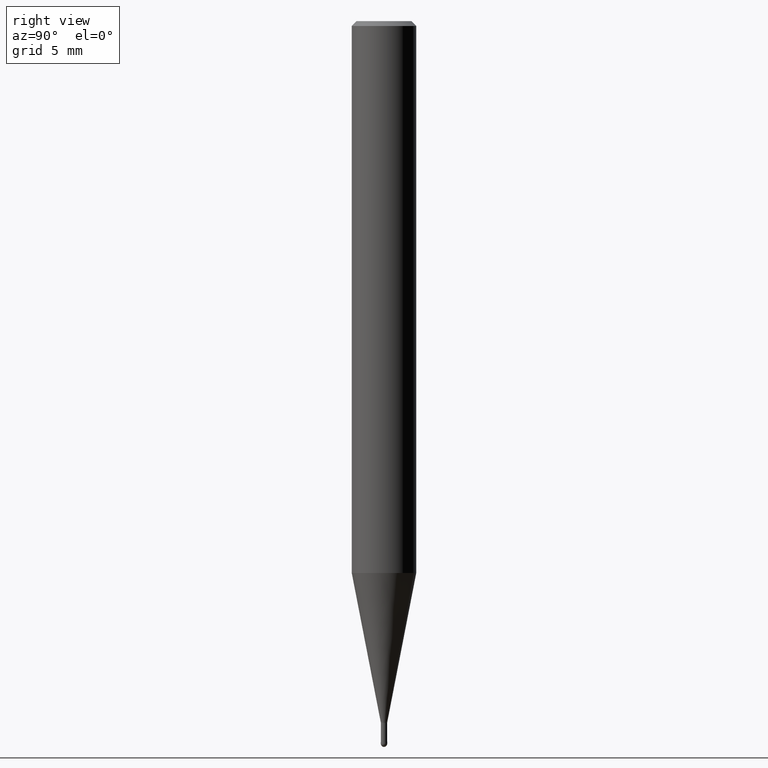
[diagram: clean part render]
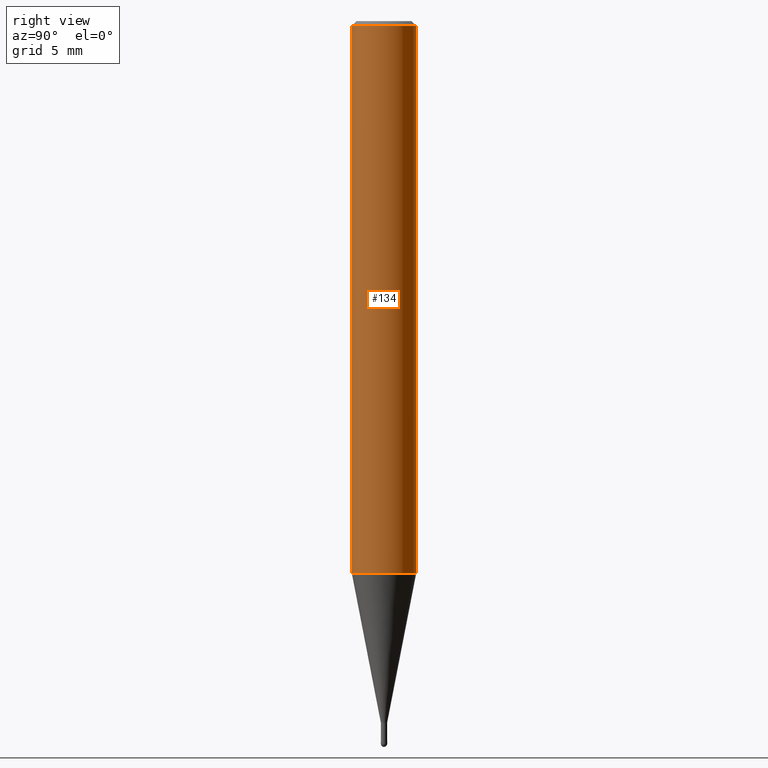
[diagram: same view with one face highlighted and labeled with its STEP entity id]
A machine part, right view. The second image highlights one B-rep face of the part: STEP entity #134.
In plain terms, the highlighted cylindrical surface (edge-blend (fillet) strip) has radius 2 mm, axis along (-0, -0, 1).
Its self-contained STEP definition (entity closure, byte-faithful):
#112=EDGE_CURVE('',#188,#140,#257,.T.);
#134=ADVANCED_FACE('',(#283),#284,.T.);
#140=VERTEX_POINT('',#291);
#144=VERTEX_POINT('',#295);
#158=EDGE_CURVE('',#166,#140,#311,.T.);
#164=EDGE_CURVE('',#144,#188,#317,.T.);
#166=VERTEX_POINT('',#319);
#180=EDGE_CURVE('',#166,#144,#335,.T.);
#188=VERTEX_POINT('',#343);
#257=LINE('',#413,#414);
#283=FACE_OUTER_BOUND('',#443,.T.);
#284=CYLINDRICAL_SURFACE('',#444,2.0);
#291=CARTESIAN_POINT('',(2.44921270764475E-016,-2.0,-0.299999999999997));
#295=CARTESIAN_POINT('',(0.0,2.0,-34.214));
#311=CIRCLE('',#477,2.0);
#317=CIRCLE('',#485,2.0);
#319=CARTESIAN_POINT('',(0.0,2.0,-0.299999999999997));
#335=LINE('',#506,#507);
#343=CARTESIAN_POINT('',(2.44921270764475E-016,-2.0,-34.214));
#413=CARTESIAN_POINT('',(2.44921270764475E-016,-2.0,-17.257));
#414=VECTOR('',#589,1.0);
#443=EDGE_LOOP('',(#634,#635,#636,#637));
#444=AXIS2_PLACEMENT_3D('',#638,#639,#640);
#477=AXIS2_PLACEMENT_3D('',#668,#669,#670);
#485=AXIS2_PLACEMENT_3D('',#674,#675,#676);
#506=CARTESIAN_POINT('',(-2.44921270764475E-016,2.0,-17.257));
#507=VECTOR('',#696,1.0);
#589=DIRECTION('',(-0.0,-0.0,1.0));
#634=ORIENTED_EDGE('',*,*,#180,.F.);
#635=ORIENTED_EDGE('',*,*,#158,.T.);
#636=ORIENTED_EDGE('',*,*,#112,.F.);
#637=ORIENTED_EDGE('',*,*,#164,.F.);
#638=CARTESIAN_POINT('',(0.0,0.0,-17.257));
#639=DIRECTION('',(-0.0,-0.0,1.0));
#640=DIRECTION('',(0.0,1.0,0.0));
#668=CARTESIAN_POINT('',(0.0,0.0,-0.299999999999997));
#669=DIRECTION('',(0.0,0.0,-1.0));
#670=DIRECTION('',(0.0,1.0,0.0));
#674=CARTESIAN_POINT('',(0.0,0.0,-34.214));
#675=DIRECTION('',(0.0,0.0,-1.0));
#676=DIRECTION('',(0.0,1.0,0.0));
#696=DIRECTION('',(0.0,0.0,-1.0));